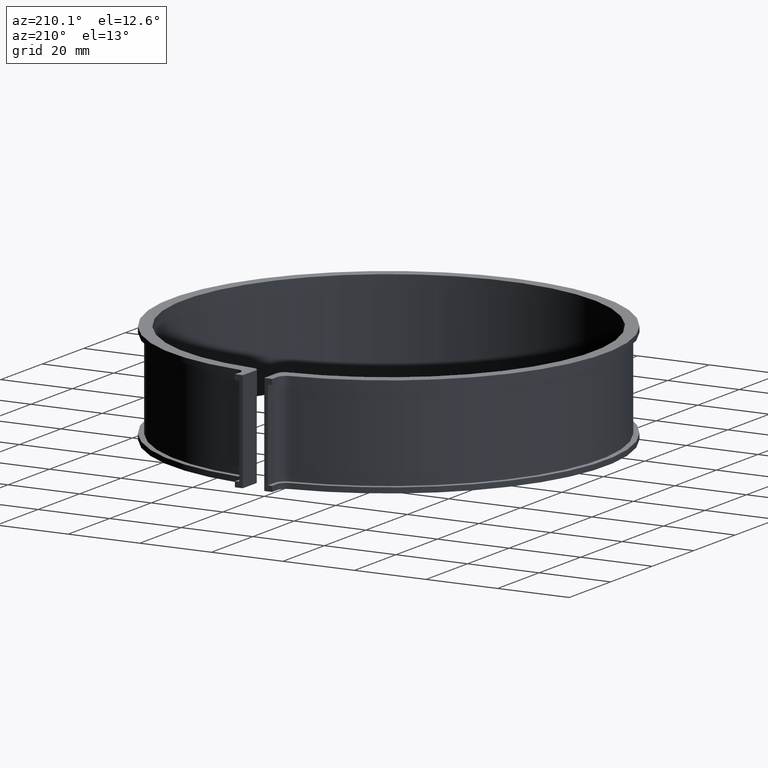
[diagram: clean part render]
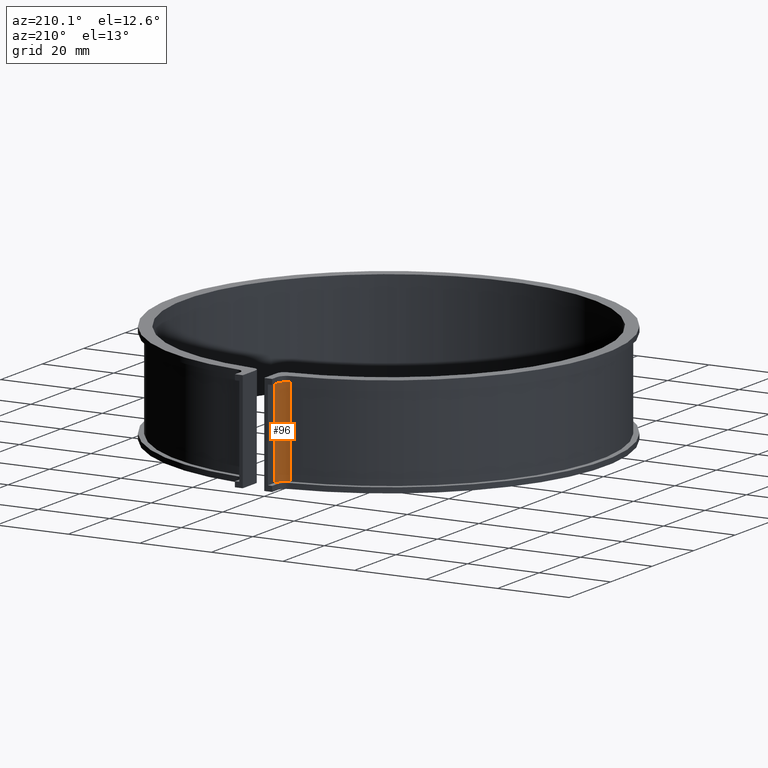
[diagram: same view with one face highlighted and labeled with its STEP entity id]
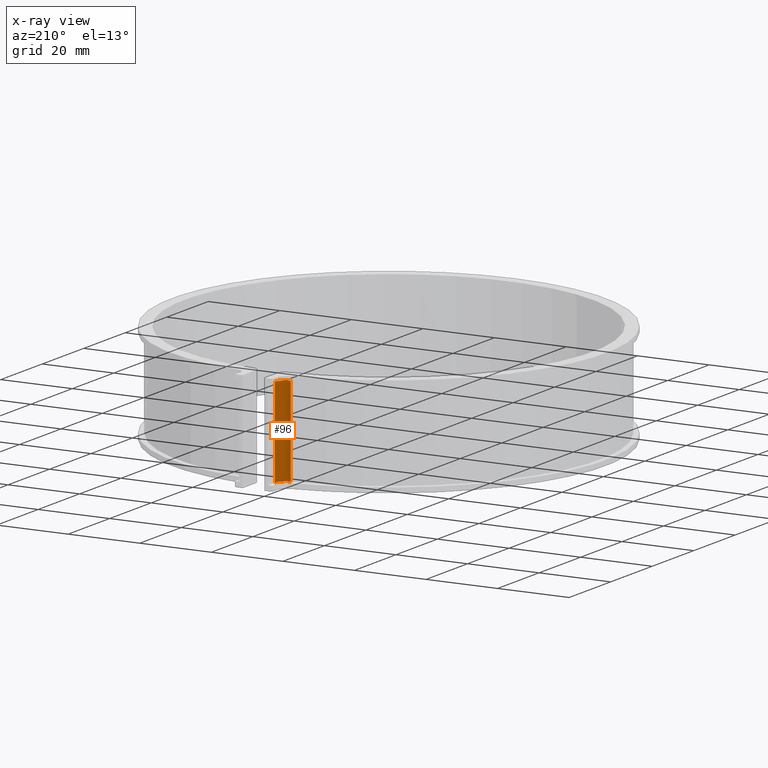
[diagram: x-ray of the same camera — body ghosted, the highlighted face saturated]
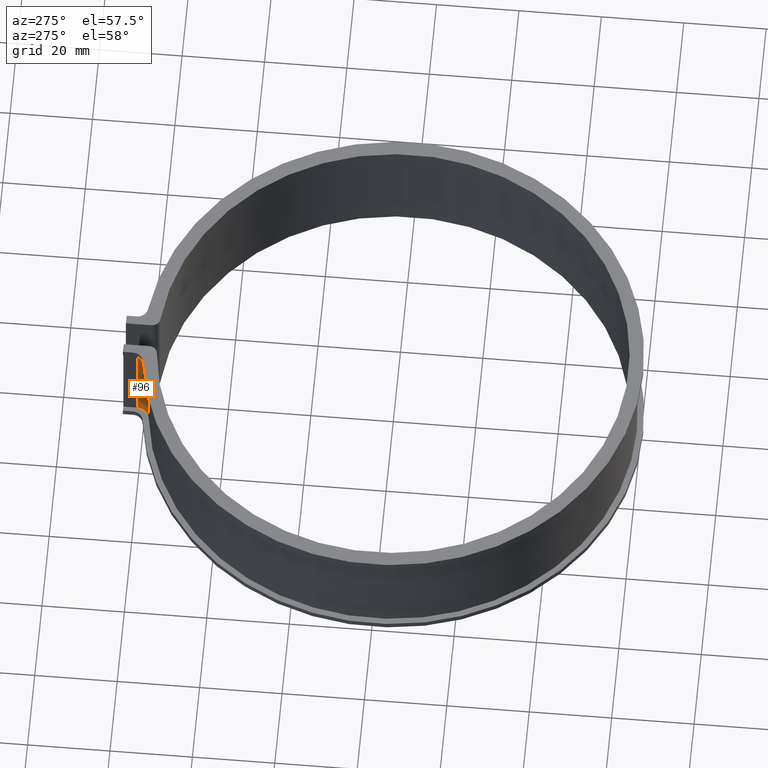
[diagram: same view with one face highlighted and labeled with its STEP entity id]
A machine part, auxiliary view. The second image highlights one B-rep face of the part: STEP entity #96.
The next image is the same camera in x-ray: the body ghosted, the highlighted face saturated — about 0% of this face is hidden behind the body in this view.
A second angle (auxiliary view) of the same face is appended — the face is thin or edge-on in the first view.
In plain terms, the highlighted cylindrical surface (edge-blend (fillet) strip) has radius 3 mm, axis along (0, 0, -1).
Its self-contained STEP definition (entity closure, byte-faithful):
#96 = ADVANCED_FACE( '', ( #144 ), #145, .F. );
#144 = FACE_OUTER_BOUND( '', #196, .T. );
#145 = CYLINDRICAL_SURFACE( '', #197, 3.00000000000000 );
#196 = EDGE_LOOP( '', ( #385, #386, #387, #388 ) );
#197 = AXIS2_PLACEMENT_3D( '', #389, #390, #391 );
#385 = ORIENTED_EDGE( '', *, *, #430, .F. );
#386 = ORIENTED_EDGE( '', *, *, #447, .T. );
#387 = ORIENTED_EDGE( '', *, *, #493, .T. );
#388 = ORIENTED_EDGE( '', *, *, #494, .F. );
#389 = CARTESIAN_POINT( '', ( -7.00000000000000, 61.7545342464827, -14.0000000000000 ) );
#390 = DIRECTION( '', ( 0.000000000000000, 0.000000000000000, -1.00000000000000 ) );
#391 = DIRECTION( '', ( -0.0845308537616220, -0.996420862267712, 0.000000000000000 ) );
#430 = EDGE_CURVE( '', #503, #505, #506, .T. );
#447 = EDGE_CURVE( '', #503, #537, #538, .T. );
#493 = EDGE_CURVE( '', #537, #610, #611, .T. );
#494 = EDGE_CURVE( '', #505, #610, #612, .T. );
#503 = VERTEX_POINT( '', #624 );
#505 = VERTEX_POINT( '', #627 );
#506 = LINE( '', #628, #629 );
#537 = VERTEX_POINT( '', #674 );
#538 = CIRCLE( '', #675, 3.00000000000000 );
#610 = VERTEX_POINT( '', #774 );
#611 = LINE( '', #775, #776 );
#612 = CIRCLE( '', #777, 3.00000000000000 );
#624 = CARTESIAN_POINT( '', ( -4.00000000000000, 61.7545342464827, -12.5000000000000 ) );
#627 = CARTESIAN_POINT( '', ( -4.00000000000000, 61.7545342464827, 12.5000000000000 ) );
#628 = CARTESIAN_POINT( '', ( -4.00000000000000, 61.7545342464827, -14.0000000000000 ) );
#629 = VECTOR( '', #790, 1000.00000000000 );
#674 = CARTESIAN_POINT( '', ( -6.66210780370072, 58.7736235024852, -12.5000000000000 ) );
#675 = AXIS2_PLACEMENT_3D( '', #811, #812, #813 );
#774 = CARTESIAN_POINT( '', ( -6.66210780370077, 58.7736235024851, 12.5000000000000 ) );
#775 = CARTESIAN_POINT( '', ( -6.66210780370072, 58.7736235024852, -14.0000000000000 ) );
#776 = VECTOR( '', #895, 1000.00000000000 );
#777 = AXIS2_PLACEMENT_3D( '', #896, #897, #898 );
#790 = DIRECTION( '', ( 0.000000000000000, 0.000000000000000, 1.00000000000000 ) );
#811 = CARTESIAN_POINT( '', ( -6.99999999999999, 61.7545342464827, -12.5000000000000 ) );
#812 = DIRECTION( '', ( 0.000000000000000, 0.000000000000000, -1.00000000000000 ) );
#813 = DIRECTION( '', ( 1.00000000000000, 1.01307850997046E-015, 0.000000000000000 ) );
#895 = DIRECTION( '', ( 0.000000000000000, 0.000000000000000, 1.00000000000000 ) );
#896 = CARTESIAN_POINT( '', ( -6.99999999999999, 61.7545342464827, 12.5000000000000 ) );
#897 = DIRECTION( '', ( 0.000000000000000, 0.000000000000000, -1.00000000000000 ) );
#898 = DIRECTION( '', ( 1.00000000000000, 1.01307850997046E-015, 0.000000000000000 ) );